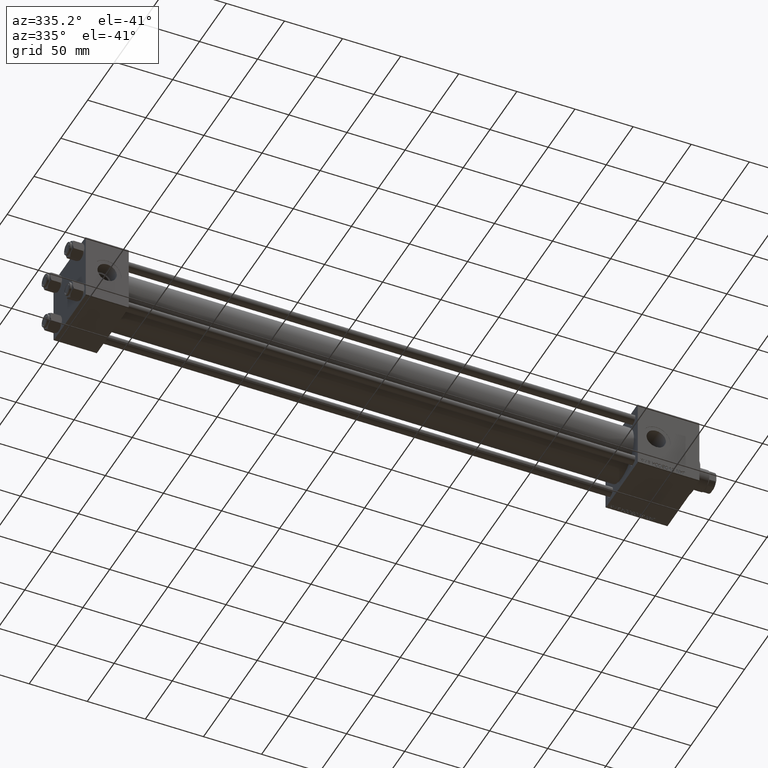
[diagram: clean part render]
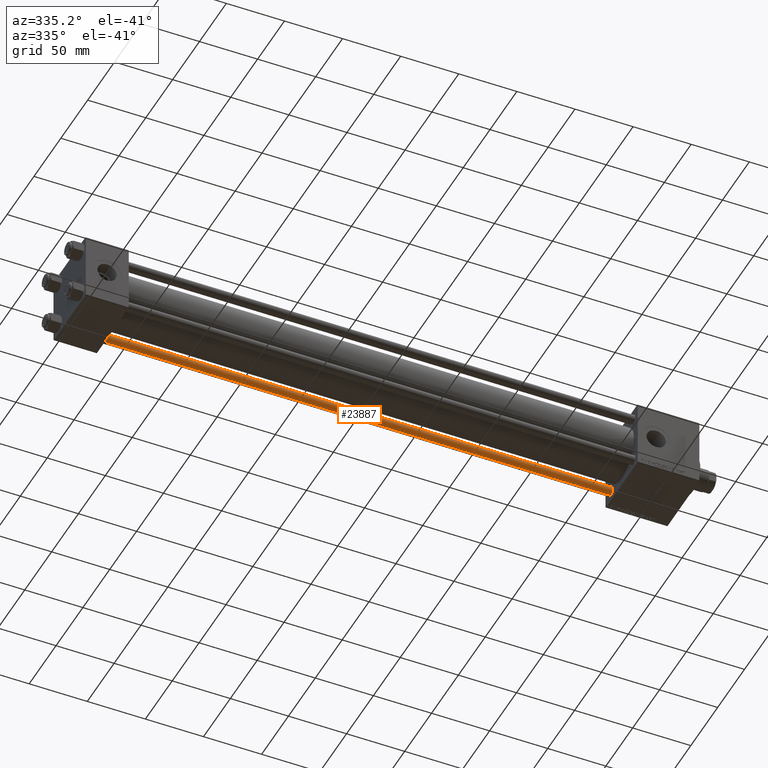
[diagram: same view with one face highlighted and labeled with its STEP entity id]
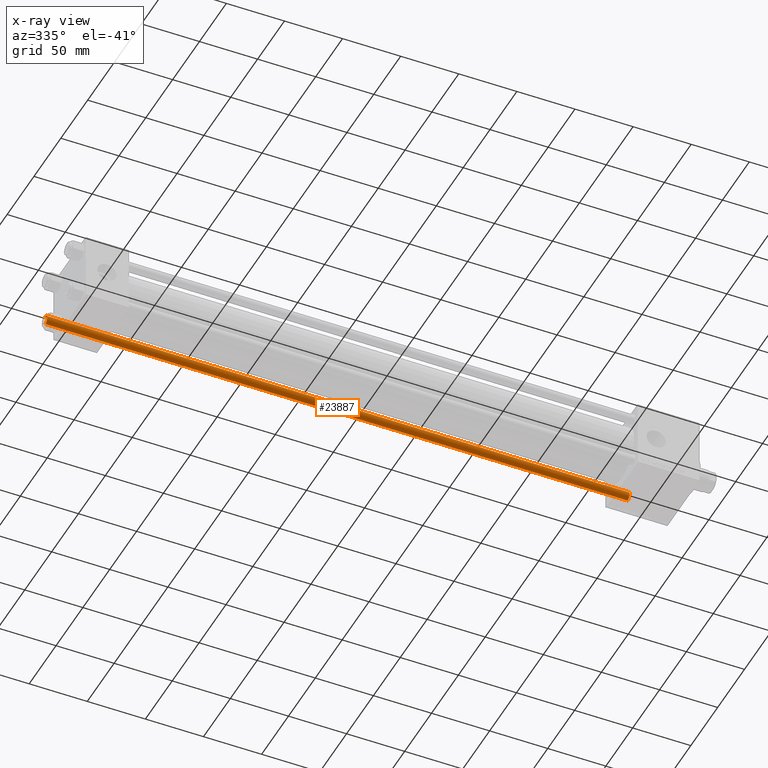
[diagram: x-ray of the same camera — body ghosted, the highlighted face saturated]
A machine part, auxiliary view. The second image highlights one B-rep face of the part: STEP entity #23887.
The next image is the same camera in x-ray: the body ghosted, the highlighted face saturated — about 0% of this face is hidden behind the body in this view.
In plain terms, the highlighted cylindrical surface (edge-blend (fillet) strip) has radius 4 mm, axis along (1, -0, 0).
Its self-contained STEP definition (entity closure, byte-faithful):
#809 = VERTEX_POINT ( 'NONE', #887 ) ;
#887 = CARTESIAN_POINT ( 'NONE',  ( 4.000000000000000000, 4.898587196589412829E-16, 501.4999999999999432 ) ) ;
#1067 = VERTEX_POINT ( 'NONE', #1841 ) ;
#1841 = CARTESIAN_POINT ( 'NONE',  ( -4.000000000000000000, 0.000000000000000000, 501.4999999999999432 ) ) ;
#2099 = LINE ( 'NONE', #17815, #12625 ) ;
#2551 = AXIS2_PLACEMENT_3D ( 'NONE', #33609, #14802, #7202 ) ;
#3352 = CIRCLE ( 'NONE', #2551, 4.000000000000000000 ) ;
#3801 = CIRCLE ( 'NONE', #10277, 4.000000000000000000 ) ;
#4373 = ORIENTED_EDGE ( 'NONE', *, *, #44103, .T. ) ;
#5293 = DIRECTION ( 'NONE',  ( -0.000000000000000000, -0.000000000000000000, -1.000000000000000000 ) ) ;
#6116 = DIRECTION ( 'NONE',  ( 0.000000000000000000, 0.000000000000000000, -1.000000000000000000 ) ) ;
#6827 = EDGE_LOOP ( 'NONE', ( #18527, #15495, #22833, #4373 ) ) ;
#7202 = DIRECTION ( 'NONE',  ( 1.000000000000000000, 0.000000000000000000, 0.000000000000000000 ) ) ;
#10277 = AXIS2_PLACEMENT_3D ( 'NONE', #20851, #6116, #36363 ) ;
#11861 = EDGE_CURVE ( 'NONE', #1067, #26550, #21157, .T. ) ;
#12625 = VECTOR ( 'NONE', #13015, 1000.000000000000000 ) ;
#13015 = DIRECTION ( 'NONE',  ( -0.000000000000000000, -0.000000000000000000, -1.000000000000000000 ) ) ;
#14802 = DIRECTION ( 'NONE',  ( -0.000000000000000000, -0.000000000000000000, 1.000000000000000000 ) ) ;
#15495 = ORIENTED_EDGE ( 'NONE', *, *, #15809, .T. ) ;
#15809 = EDGE_CURVE ( 'NONE', #809, #1067, #3801, .T. ) ;
#16303 = CARTESIAN_POINT ( 'NONE',  ( -4.000000000000000000, 0.000000000000000000, 0.4999999999999449329 ) ) ;
#17211 = CARTESIAN_POINT ( 'NONE',  ( 0.000000000000000000, 0.000000000000000000, 502.0000000000000000 ) ) ;
#17815 = CARTESIAN_POINT ( 'NONE',  ( 4.000000000000000000, 4.898587196589412829E-16, 502.0000000000000000 ) ) ;
#18527 = ORIENTED_EDGE ( 'NONE', *, *, #27449, .F. ) ;
#20773 = DIRECTION ( 'NONE',  ( -1.000000000000000000, 0.000000000000000000, 0.000000000000000000 ) ) ;
#20851 = CARTESIAN_POINT ( 'NONE',  ( 0.000000000000000000, 0.000000000000000000, 501.4999999999999432 ) ) ;
#21157 = LINE ( 'NONE', #49090, #22289 ) ;
#22289 = VECTOR ( 'NONE', #33345, 1000.000000000000000 ) ;
#22833 = ORIENTED_EDGE ( 'NONE', *, *, #11861, .T. ) ;
#23887 = ADVANCED_FACE ( 'NONE', ( #24561 ), #40083, .T. ) ;
#24561 = FACE_OUTER_BOUND ( 'NONE', #6827, .T. ) ;
#26550 = VERTEX_POINT ( 'NONE', #16303 ) ;
#27449 = EDGE_CURVE ( 'NONE', #809, #48902, #2099, .T. ) ;
#28023 = AXIS2_PLACEMENT_3D ( 'NONE', #17211, #5293, #20773 ) ;
#33345 = DIRECTION ( 'NONE',  ( -0.000000000000000000, -0.000000000000000000, -1.000000000000000000 ) ) ;
#33609 = CARTESIAN_POINT ( 'NONE',  ( 0.000000000000000000, 0.000000000000000000, 0.4999999999999449329 ) ) ;
#36363 = DIRECTION ( 'NONE',  ( 1.000000000000000000, 0.000000000000000000, 0.000000000000000000 ) ) ;
#36587 = CARTESIAN_POINT ( 'NONE',  ( 4.000000000000000000, 4.898587196589412829E-16, 0.4999999999999449329 ) ) ;
#40083 = CYLINDRICAL_SURFACE ( 'NONE', #28023, 4.000000000000000000 ) ;
#44103 = EDGE_CURVE ( 'NONE', #26550, #48902, #3352, .T. ) ;
#48902 = VERTEX_POINT ( 'NONE', #36587 ) ;
#49090 = CARTESIAN_POINT ( 'NONE',  ( -4.000000000000000000, 0.000000000000000000, 502.0000000000000000 ) ) ;